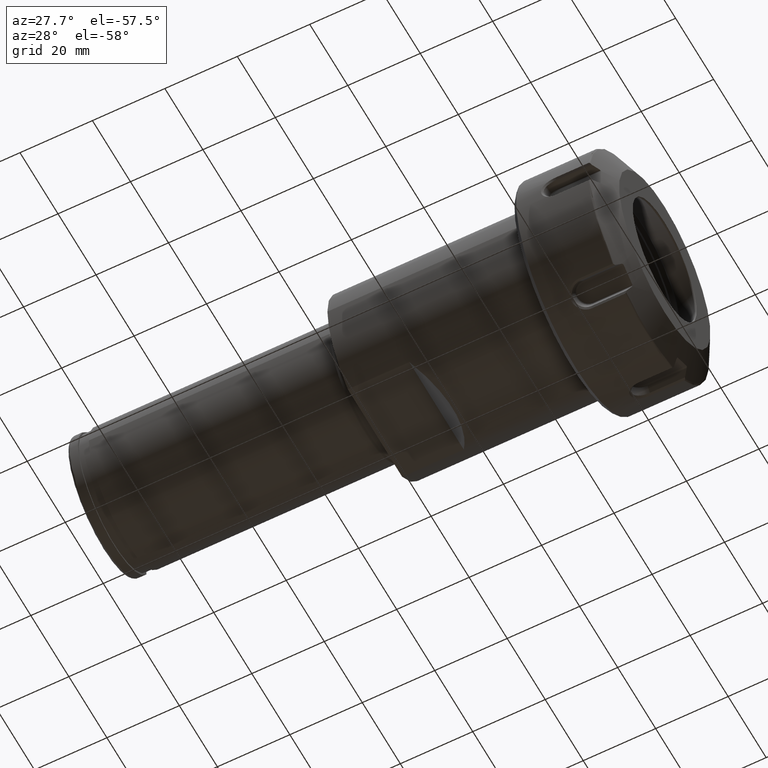
[diagram: clean part render]
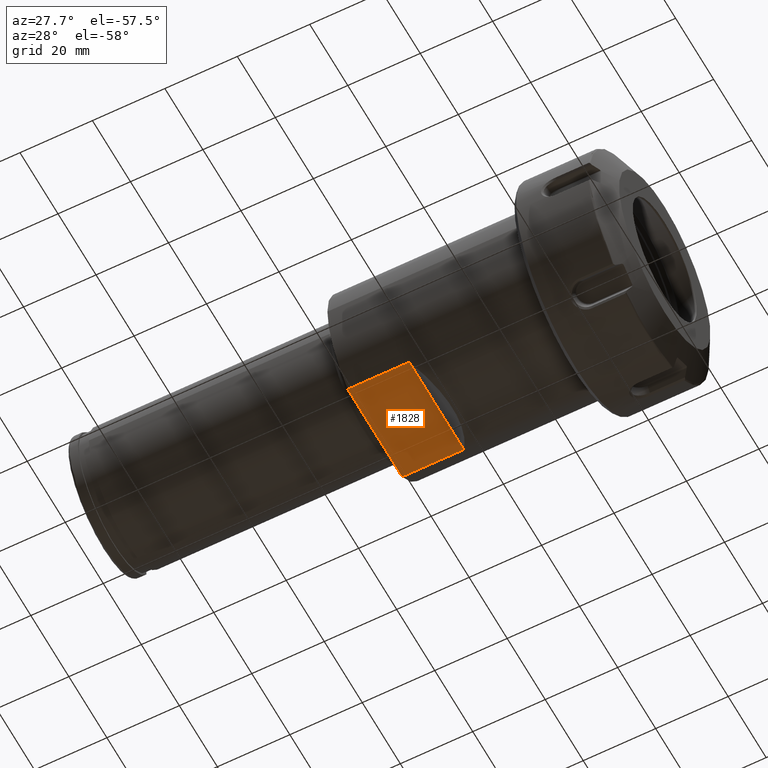
[diagram: same view with one face highlighted and labeled with its STEP entity id]
A machine part, auxiliary view. The second image highlights one B-rep face of the part: STEP entity #1828.
In plain terms, the highlighted planar face has unit normal (0, 0, -1).
Its self-contained STEP definition (entity closure, byte-faithful):
#338=FACE_OUTER_BOUND('',#449,.T.);
#449=EDGE_LOOP('',(#1241,#1242,#1243,#1244));
#569=LINE('',#2725,#683);
#570=LINE('',#2728,#684);
#571=LINE('',#2730,#685);
#572=LINE('',#2731,#686);
#683=VECTOR('',#2217,10.);
#684=VECTOR('',#2220,10.);
#685=VECTOR('',#2221,10.);
#686=VECTOR('',#2222,10.);
#800=VERTEX_POINT('',#2722);
#801=VERTEX_POINT('',#2723);
#802=VERTEX_POINT('',#2727);
#803=VERTEX_POINT('',#2729);
#970=EDGE_CURVE('',#800,#801,#569,.T.);
#971=EDGE_CURVE('',#801,#802,#570,.T.);
#972=EDGE_CURVE('',#803,#800,#571,.T.);
#973=EDGE_CURVE('',#802,#803,#572,.T.);
#1241=ORIENTED_EDGE('',*,*,#971,.F.);
#1242=ORIENTED_EDGE('',*,*,#970,.F.);
#1243=ORIENTED_EDGE('',*,*,#972,.F.);
#1244=ORIENTED_EDGE('',*,*,#973,.F.);
#1780=PLANE('',#2015);
#1828=ADVANCED_FACE('',(#338),#1780,.T.);
#2015=AXIS2_PLACEMENT_3D('',#2726,#2218,#2219);
#2217=DIRECTION('',(0.,1.,0.));
#2218=DIRECTION('center_axis',(0.,0.,-1.));
#2219=DIRECTION('ref_axis',(1.,0.,0.));
#2220=DIRECTION('',(-1.,0.,0.));
#2221=DIRECTION('',(1.,0.,0.));
#2222=DIRECTION('',(0.,-1.,0.));
#2722=CARTESIAN_POINT('',(-48.,-14.3090880212542,-20.5));
#2723=CARTESIAN_POINT('',(-48.,14.3090880212542,-20.5));
#2725=CARTESIAN_POINT('',(-48.,0.,-20.5));
#2726=CARTESIAN_POINT('Origin',(-65.,0.,-20.5));
#2727=CARTESIAN_POINT('',(-65.,14.3090880212542,-20.5));
#2728=CARTESIAN_POINT('',(-32.5,14.3090880212542,-20.5));
#2729=CARTESIAN_POINT('',(-65.,-14.3090880212542,-20.5));
#2730=CARTESIAN_POINT('',(-32.5,-14.3090880212542,-20.5));
#2731=CARTESIAN_POINT('',(-65.,12.5,-20.5));